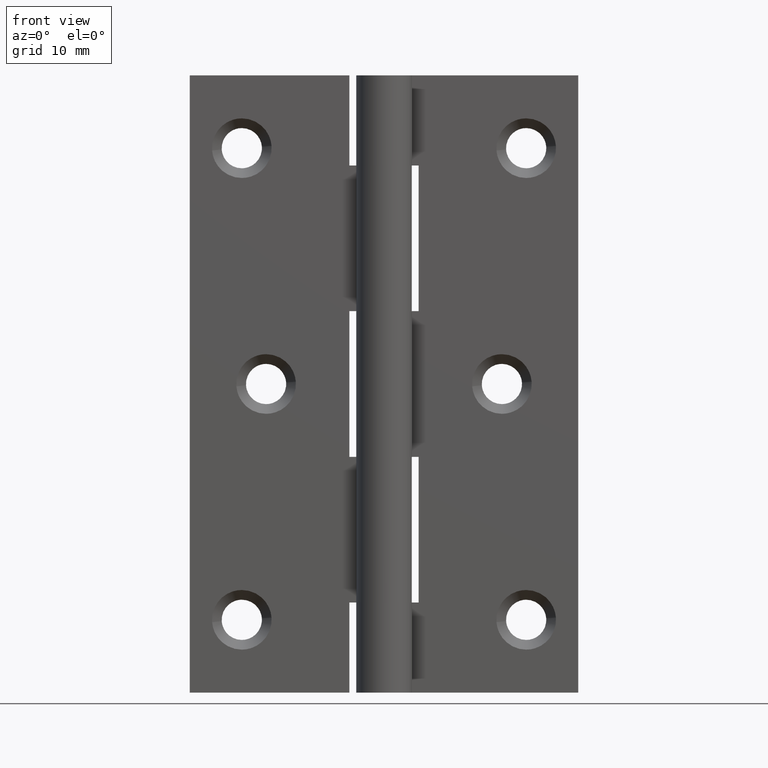
[diagram: clean part render]
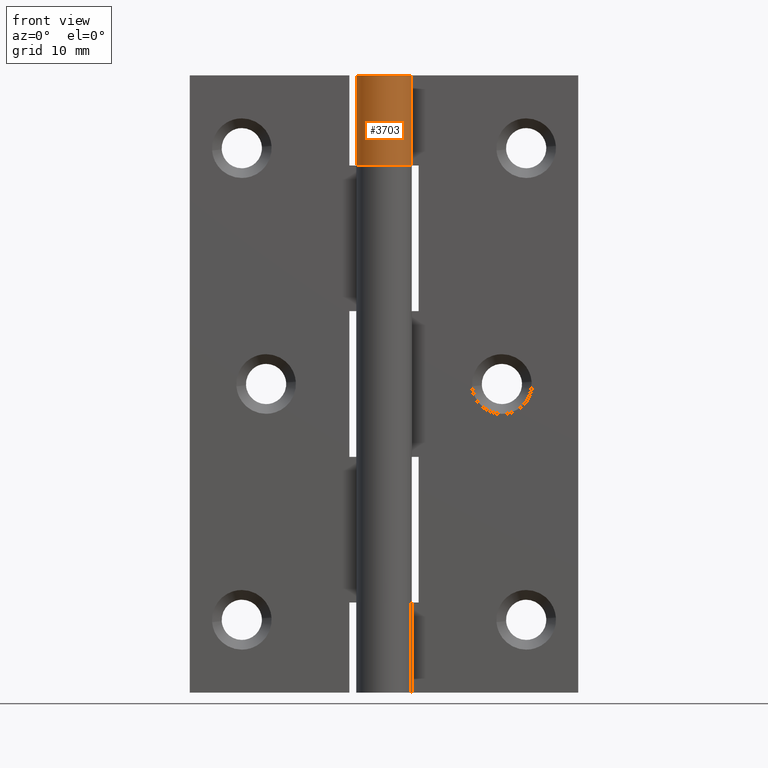
[diagram: same view with one face highlighted and labeled with its STEP entity id]
A machine part, front view. The second image highlights one B-rep face of the part: STEP entity #3703.
In plain terms, the highlighted face is a freeform B-spline surface patch.
Its self-contained STEP definition (entity closure, byte-faithful):
#3150=CARTESIAN_POINT('',(3.161882350752475,2.450000000000000,76.000008000000093));
#3151=VERTEX_POINT('',#3150);
#3157=CARTESIAN_POINT('',(0.0,4.0,76.000007999999994));
#3158=VERTEX_POINT('',#3157);
#3159=CARTESIAN_POINT('',(3.161882350752475,2.450000000000001,76.000008000000093));
#3160=CARTESIAN_POINT('',(5.108698207643565,-0.062490897171015,76.000008000000093));
#3161=CARTESIAN_POINT('',(3.101007199225136,-2.526609259532206,76.000008000000093));
#3162=CARTESIAN_POINT('',(1.093316190806708,-4.990727621893395,76.000008000000093));
#3163=CARTESIAN_POINT('',(-1.760681686165899,-3.591656999213595,76.000008000000093));
#3164=CARTESIAN_POINT('',(-4.614679563138511,-2.192586376533793,76.000008000000093));
#3165=CARTESIAN_POINT('',(-3.896577215766061,0.903706811733106,76.000008000000093));
#3166=CARTESIAN_POINT('',(-3.178474868393612,4.0,76.000008000000093));
#3167=CARTESIAN_POINT('',(0.0,4.0,76.000008000000093));
#3175=(BOUNDED_CURVE()B_SPLINE_CURVE(2,(#3159,#3160,#3161,#3162,#3163,#3164,#3165,#3166,#3167),.UNSPECIFIED.,.F.,.U.)B_SPLINE_CURVE_WITH_KNOTS((3,2,2,2,3),(0.0,0.250000000000000,0.500000000000000,0.750000000000000,1.0),.UNSPECIFIED.)CURVE()GEOMETRIC_REPRESENTATION_ITEM()RATIONAL_B_SPLINE_CURVE((1.0,0.782919760554450,1.0,0.782919760554450,1.0,0.782919760554450,1.0,0.782919760554450,1.0))REPRESENTATION_ITEM(''));
#3176=EDGE_CURVE('',#3151,#3158,#3175,.T.);
#3389=CARTESIAN_POINT('',(3.552714E-015,4.0,89.000008000000008));
#3390=VERTEX_POINT('',#3389);
#3396=CARTESIAN_POINT('',(3.161882350752475,2.450000000000000,89.000008000000008));
#3397=VERTEX_POINT('',#3396);
#3398=CARTESIAN_POINT('',(3.161882350752474,2.450000000000002,89.000008000000008));
#3399=CARTESIAN_POINT('',(5.108698207643567,-0.062490897171015,89.000008000000008));
#3400=CARTESIAN_POINT('',(3.101007199225135,-2.526609259532207,89.000008000000008));
#3401=CARTESIAN_POINT('',(1.093316190806708,-4.990727621893395,89.000008000000008));
#3402=CARTESIAN_POINT('',(-1.760681686165899,-3.591656999213595,89.000008000000008));
#3403=CARTESIAN_POINT('',(-4.614679563138510,-2.192586376533794,89.000008000000008));
#3404=CARTESIAN_POINT('',(-3.896577215766061,0.903706811733105,89.000008000000008));
#3405=CARTESIAN_POINT('',(-3.178474868393613,4.0,89.000008000000008));
#3406=CARTESIAN_POINT('',(0.0,4.0,89.000008000000008));
#3414=(BOUNDED_CURVE()B_SPLINE_CURVE(2,(#3398,#3399,#3400,#3401,#3402,#3403,#3404,#3405,#3406),.UNSPECIFIED.,.F.,.U.)B_SPLINE_CURVE_WITH_KNOTS((3,2,2,2,3),(0.0,0.250000000000000,0.500000000000000,0.750000000000000,1.0),.UNSPECIFIED.)CURVE()GEOMETRIC_REPRESENTATION_ITEM()RATIONAL_B_SPLINE_CURVE((1.0,0.782919760554450,1.0,0.782919760554450,1.0,0.782919760554450,1.0,0.782919760554450,1.0))REPRESENTATION_ITEM(''));
#3415=EDGE_CURVE('',#3397,#3390,#3414,.T.);
#3667=CARTESIAN_POINT('',(3.086498333550879,2.544312881111055,75.675007999999991));
#3668=CARTESIAN_POINT('',(3.086498333550879,2.544312881111055,89.333133000000018));
#3669=CARTESIAN_POINT('',(6.382415685900924,-1.453954584762697,75.675007999999991));
#3670=CARTESIAN_POINT('',(6.382415685900924,-1.453954584762697,89.333133000000004));
#3671=CARTESIAN_POINT('',(1.679920539843638,-3.630133190368013,75.675007999999991));
#3672=CARTESIAN_POINT('',(1.679920539843638,-3.630133190368013,89.333133000000018));
#3673=CARTESIAN_POINT('',(-3.022574606213649,-5.806311795973331,75.675007999999991));
#3674=CARTESIAN_POINT('',(-3.022574606213649,-5.806311795973331,89.333133000000004));
#3675=CARTESIAN_POINT('',(-3.937193860527717,-0.706048514354957,75.675007999999991));
#3676=CARTESIAN_POINT('',(-3.937193860527717,-0.706048514354957,89.333133000000018));
#3677=CARTESIAN_POINT('',(-4.851813114841786,4.394214767263417,75.675007999999991));
#3678=CARTESIAN_POINT('',(-4.851813114841786,4.394214767263417,89.333133000000004));
#3679=CARTESIAN_POINT('',(0.313836382911379,3.987669334932511,75.675007999999991));
#3680=CARTESIAN_POINT('',(0.313836382911379,3.987669334932511,89.333133000000018));
#3688=(BOUNDED_SURFACE()B_SPLINE_SURFACE(1,2,((#3667,#3669,#3671,#3673,#3675,#3677,#3679),(#3668,#3670,#3672,#3674,#3676,#3678,#3680)),.UNSPECIFIED.,.F.,.F.,.U.)B_SPLINE_SURFACE_WITH_KNOTS((2,2),(3,2,2,3),(0.0,13.658125000000030),(0.0,7.861417130533329,15.722834261066660,23.584251391599992),.UNSPECIFIED.)GEOMETRIC_REPRESENTATION_ITEM()RATIONAL_B_SPLINE_SURFACE(((1.0,0.611066621529600,1.0,0.611066621529600,1.0,0.611066621529600,1.0),(1.0,0.611066621529600,1.0,0.611066621529600,1.0,0.611066621529600,1.0)))REPRESENTATION_ITEM('')SURFACE());
#3689=ORIENTED_EDGE('',*,*,#3176,.F.);
#3690=CARTESIAN_POINT('',(3.161882350752475,2.450000000000000,76.000008000000093));
#3691=CARTESIAN_POINT('',(3.161882350752475,2.450000000000000,89.000008000000008));
#3692=QUASI_UNIFORM_CURVE('',1,(#3690,#3691),.UNSPECIFIED.,.F.,.U.);
#3693=EDGE_CURVE('',#3151,#3397,#3692,.T.);
#3694=ORIENTED_EDGE('',*,*,#3693,.T.);
#3695=ORIENTED_EDGE('',*,*,#3415,.T.);
#3696=CARTESIAN_POINT('',(0.0,4.0,76.000007999999994));
#3697=CARTESIAN_POINT('',(3.552714E-015,4.0,89.000008000000008));
#3698=QUASI_UNIFORM_CURVE('',1,(#3696,#3697),.UNSPECIFIED.,.F.,.U.);
#3699=EDGE_CURVE('',#3158,#3390,#3698,.T.);
#3700=ORIENTED_EDGE('',*,*,#3699,.F.);
#3701=EDGE_LOOP('',(#3689,#3694,#3695,#3700));
#3702=FACE_OUTER_BOUND('',#3701,.T.);
#3703=ADVANCED_FACE('',(#3702),#3688,.T.);